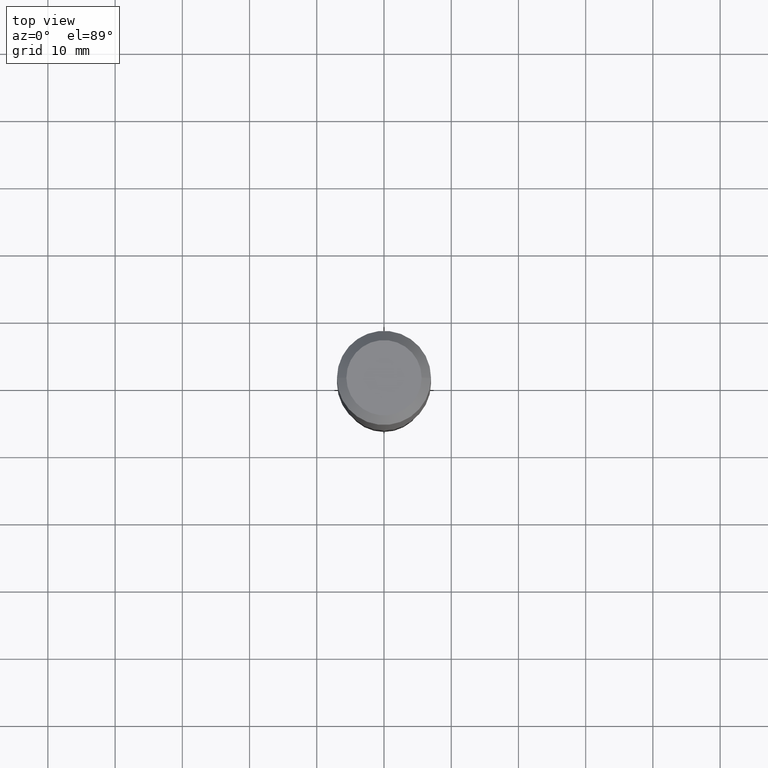
[diagram: clean part render]
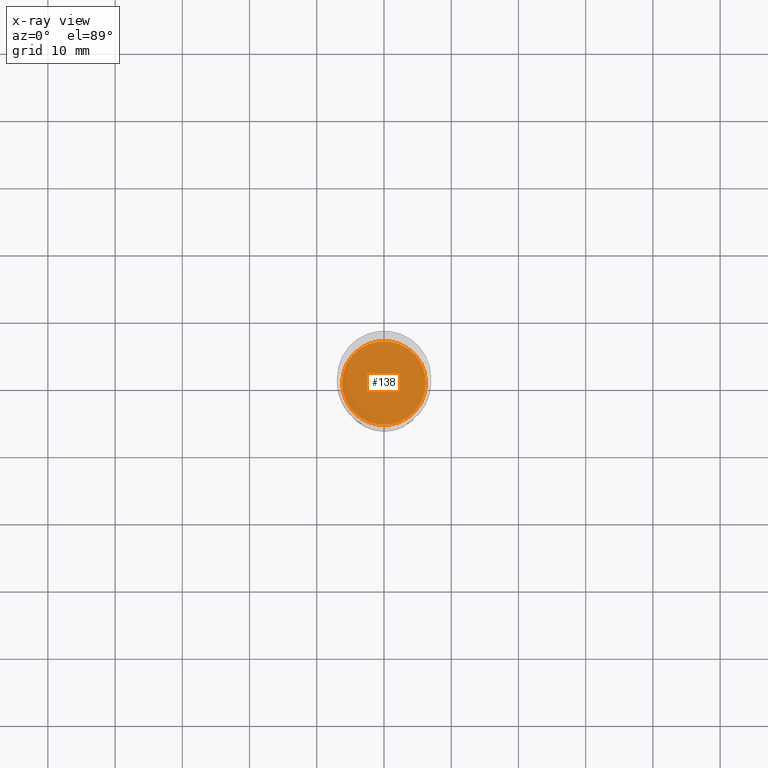
[diagram: x-ray — body ghosted, one internal face saturated and labeled with its STEP entity id]
A machine part, top view, then the same camera in x-ray: the body is ghosted and one INTERNAL B-rep face — a face not visible from any outside direction — is saturated and labeled: STEP entity #138.
In plain terms, the highlighted planar face has unit normal (-0, 0, 1).
Its self-contained STEP definition (entity closure, byte-faithful):
#22 = DIRECTION ( 'NONE',  ( 1.000000000000000000, -6.982962677686269077E-15, 0.000000000000000000 ) ) ;
#44 = CARTESIAN_POINT ( 'NONE',  ( 3.087548876169571807E-29, -8.519285624669787196E-15, -1.850400000000001155 ) ) ;
#68 = DIRECTION ( 'NONE',  ( -2.445468806185136597E-29, 3.491481338843145583E-15, 1.000000000000000000 ) ) ;
#86 = CARTESIAN_POINT ( 'NONE',  ( -0.2455499999999999905, -4.713250154562323197E-15, -1.850400000000001155 ) ) ;
#129 = CIRCLE ( 'NONE', #231, 0.2455499999999999905 ) ;
#137 = ORIENTED_EDGE ( 'NONE', *, *, #317, .F. ) ;
#138 = ADVANCED_FACE ( 'NONE', ( #156 ), #229, .F. ) ;
#156 = FACE_OUTER_BOUND ( 'NONE', #294, .T. ) ;
#168 = DIRECTION ( 'NONE',  ( 1.000000000000000000, -6.982962677686269077E-15, 0.000000000000000000 ) ) ;
#181 = CIRCLE ( 'NONE', #391, 0.2455499999999999905 ) ;
#194 = DIRECTION ( 'NONE',  ( 1.000000000000000000, -6.982962677686265922E-15, 4.876176775795935793E-29 ) ) ;
#205 = CARTESIAN_POINT ( 'NONE',  ( 0.2455499999999999905, -8.175303554901223857E-15, -1.850400000000001155 ) ) ;
#211 = VERTEX_POINT ( 'NONE', #86 ) ;
#229 = PLANE ( 'NONE',  #442 ) ;
#231 = AXIS2_PLACEMENT_3D ( 'NONE', #235, #350, #168 ) ;
#235 = CARTESIAN_POINT ( 'NONE',  ( 4.525095478964979075E-29, -6.460637069395360731E-15, -1.850400000000001155 ) ) ;
#259 = VERTEX_POINT ( 'NONE', #205 ) ;
#294 = EDGE_LOOP ( 'NONE', ( #479, #137 ) ) ;
#317 = EDGE_CURVE ( 'NONE', #211, #259, #129, .T. ) ;
#350 = DIRECTION ( 'NONE',  ( -2.445468806185136597E-29, 3.491481338843145583E-15, 1.000000000000000000 ) ) ;
#378 = DIRECTION ( 'NONE',  ( -2.438088387897960049E-29, 3.491481338843145188E-15, 1.000000000000000000 ) ) ;
#391 = AXIS2_PLACEMENT_3D ( 'NONE', #482, #68, #22 ) ;
#422 = EDGE_CURVE ( 'NONE', #259, #211, #181, .T. ) ;
#442 = AXIS2_PLACEMENT_3D ( 'NONE', #44, #378, #194 ) ;
#479 = ORIENTED_EDGE ( 'NONE', *, *, #422, .F. ) ;
#482 = CARTESIAN_POINT ( 'NONE',  ( 4.525095478964979075E-29, -6.460637069395360731E-15, -1.850400000000001155 ) ) ;